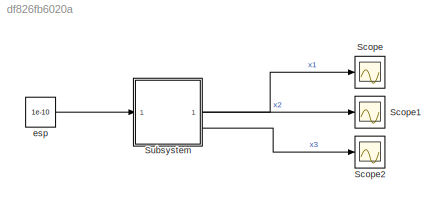
MODEL slx_df826fb6020a
KIND model
CONFIG AbsTol = auto
CONFIG EnableMultiTasking = off
CONFIG FixedStep = 0.01
CONFIG MaxStep = auto
CONFIG MinStep = auto
CONFIG RelTol = 1e-3
CONFIG SampleTimeConstraint = Unconstrained
CONFIG SolverName = FixedStepAuto
CONFIG StartTime = 0.0
CONFIG StopTime = 50
BLOCK [Scope] Scope
  Floating = off
  NumInputPorts = 1
  ScopeSpecificationString = Simulink.scopes.TimeScopeBlockCfg('CurrentConfiguration', extmgr.ConfigurationSet(extmgr.Configuration('Core','General UI',true),extmgr.Configuration('Core','Source UI',true),extmgr.Configuration('Sources','WiredSimulink',true),extmgr.Configuration('Visuals','Time Domain',true,'SerializedDisplays',{struct('MinYLimReal','-6.03931','MaxYLimReal','54.35382','YLabelReal','','MinYLimMag','0.00000','Max...<+1360ch>
BLOCK [Scope] Scope1
  Floating = off
  NumInputPorts = 1
  ScopeSpecificationString = Simulink.scopes.TimeScopeBlockCfg('CurrentConfiguration', extmgr.ConfigurationSet(extmgr.Configuration('Core','General UI',true),extmgr.Configuration('Core','Source UI',true),extmgr.Configuration('Sources','WiredSimulink',true,'DataLoggingVariableName','ScopeData1'),extmgr.Configuration('Visuals','Time Domain',true,'SerializedDisplays',{struct('MinYLimReal','-21.67165','MaxYLimReal','24.43024','YL...<+1401ch>
BLOCK [Scope] Scope2
  Floating = off
  NumInputPorts = 1
  ScopeSpecificationString = Simulink.scopes.TimeScopeBlockCfg('CurrentConfiguration', extmgr.ConfigurationSet(extmgr.Configuration('Core','General UI',true),extmgr.Configuration('Core','Source UI',true),extmgr.Configuration('Sources','WiredSimulink',true,'DataLoggingVariableName','ScopeData2'),extmgr.Configuration('Visuals','Time Domain',true,'SerializedDisplays',{struct('MinYLimReal','-28.71778','MaxYLimReal','33.92266','YL...<+1393ch>
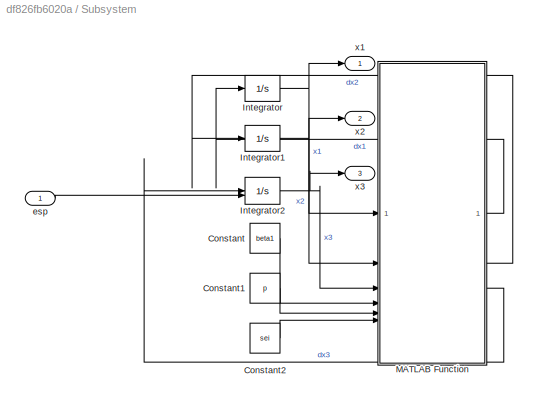
BLOCK [SubSystem] Subsystem
BLOCK [Constant] Subsystem/Constant
  Value = beta1
BLOCK [Constant] Subsystem/Constant1
  Value = p
BLOCK [Constant] Subsystem/Constant2
  Value = sei
BLOCK [Integrator] Subsystem/Integrator
  InitialCondition = x10
BLOCK [Integrator] Subsystem/Integrator1
  InitialCondition = x20
BLOCK [Integrator] Subsystem/Integrator2
  InitialConditionSource = external
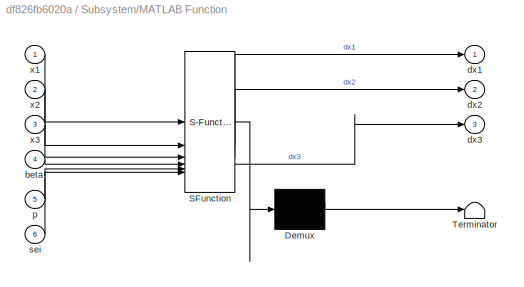
BLOCK [SubSystem] Subsystem/MATLAB Function
  ErrorFcn = Stateflow.Translate.translate
  PermitHierarchicalResolution = ExplicitOnly
  SFBlockType = MATLAB Function
  TreatAsAtomicUnit = on
BLOCK [Demux] Subsystem/MATLAB Function/ Demux 
  Outputs = 1
BLOCK [S-Function] Subsystem/MATLAB Function/ SFunction 
  EnableBusSupport = on
  FunctionName = sf_sfun
  PortCounts = [6 4]
  SFcnIsStateOwnerBlock = off
  SFunctionDeploymentMode = off
  Tag = Stateflow S-Function 2
BLOCK [Terminator] Subsystem/MATLAB Function/ Terminator 
BLOCK [Inport] Subsystem/MATLAB Function/beta
  Port = 4
BLOCK [Outport] Subsystem/MATLAB Function/dx1
BLOCK [Outport] Subsystem/MATLAB Function/dx2
  Port = 2
BLOCK [Outport] Subsystem/MATLAB Function/dx3
  Port = 3
BLOCK [Inport] Subsystem/MATLAB Function/p
  Port = 5
BLOCK [Inport] Subsystem/MATLAB Function/sei
  Port = 6
BLOCK [Inport] Subsystem/MATLAB Function/x1
BLOCK [Inport] Subsystem/MATLAB Function/x2
  Port = 2
BLOCK [Inport] Subsystem/MATLAB Function/x3
  Port = 3
BLOCK [Inport] Subsystem/esp
BLOCK [Outport] Subsystem/x1
BLOCK [Outport] Subsystem/x2
  Port = 2
BLOCK [Outport] Subsystem/x3
  Port = 3
BLOCK [Constant] esp
  Value = 1e-10
LINE Subsystem/Constant1:1 -> Subsystem/MATLAB Function:5
LINE Subsystem/Constant2:1 -> Subsystem/MATLAB Function:6
LINE Subsystem/Constant:1 -> Subsystem/MATLAB Function:4
NET Subsystem/Integrator1:1 -> Subsystem/MATLAB Function:2, Subsystem/x2:1
NET Subsystem/Integrator2:1 -> Subsystem/MATLAB Function:3, Subsystem/x3:1
NET Subsystem/Integrator:1 -> Subsystem/MATLAB Function:1, Subsystem/x1:1
LINE Subsystem/MATLAB Function:1 -> Subsystem/Integrator:1
LINE Subsystem/MATLAB Function:2 -> Subsystem/Integrator1:1
LINE Subsystem/MATLAB Function:3 -> Subsystem/Integrator2:1
LINE Subsystem/esp:1 -> Subsystem/Integrator2:2
LINE Subsystem:1 -> Scope:1
LINE Subsystem:2 -> Scope1:1
LINE Subsystem:3 -> Scope2:1
LINE esp:1 -> Subsystem:1
note: NET lines group one-source signal fan-out (src -> all destinations, sorted); 1:1 wires keep LINE
CHART Subsystem/MATLAB Function states=1 transitions=1
  STATE_LABEL 'eML_blk_kernel()'
  STATE_LABEL 'SCRIPT:\nfunction [dx1,dx2,dx3] = fcn(x1,x2,x3,beta,p,sei)\n\ndx1 = -beta*x1 + x2*x3;\ndx2 = -p*x2 + p*x3;\ndx3 = -x1*x2 + sei*x2 - x3;\n'
CHART  states=0 transitions=0
